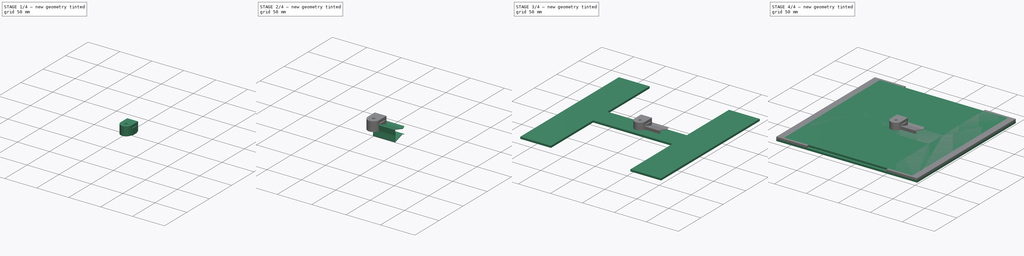
[diagram: build sequence overview — one tinted view per stage of 4, left to right]
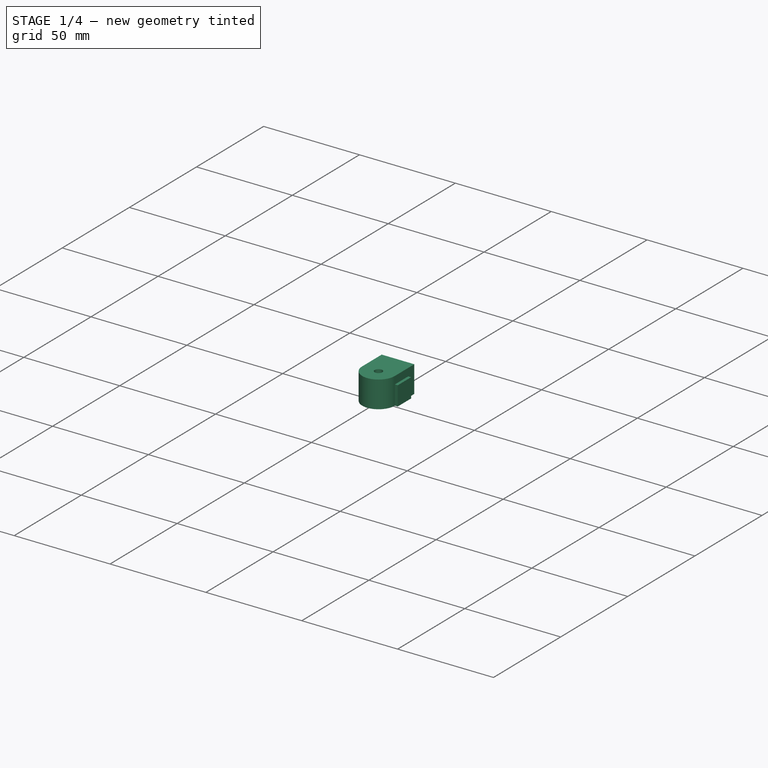
[diagram: stage 1 of 4 — iso view after this stage's code; geometry added in this stage tinted green]
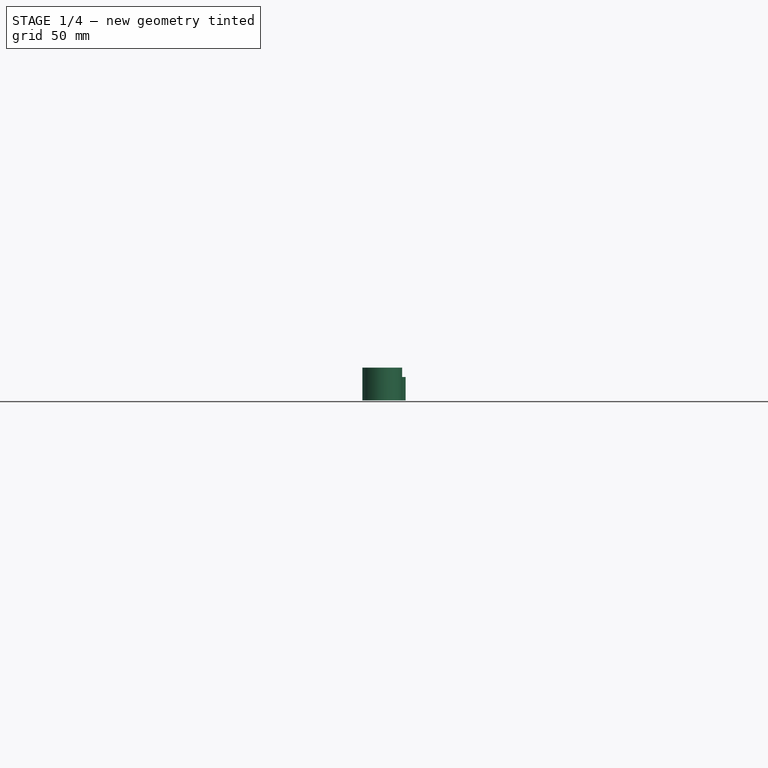
[diagram: stage 1 of 4 — front view after this stage's code; geometry added in this stage tinted green]
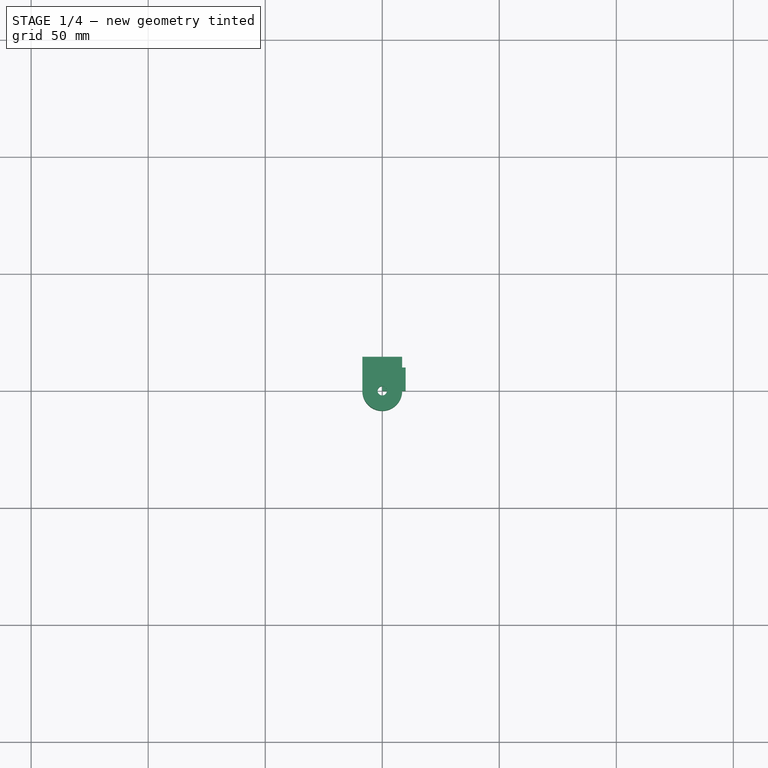
[diagram: stage 1 of 4 — top view after this stage's code; geometry added in this stage tinted green]
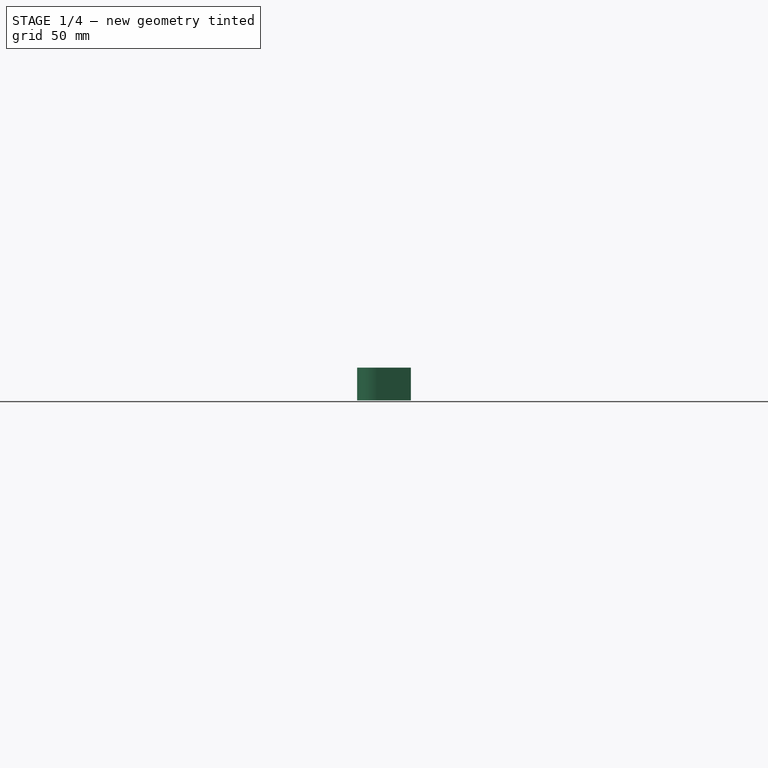
[diagram: stage 1 of 4 — right view after this stage's code; geometry added in this stage tinted green]
FCSTD DOCUMENT  (FreeCAD 0.18R16093 (Git))
Label: Anet_A6_platform_with_glas
License: All rights reserved
LicenseURL: http://en.wikipedia.org/wiki/All_rights_reserved
objects: Sketcher::SketchObject×10, PartDesign::Pad×10, PartDesign::Body×10, Spreadsheet::Sheet×1, App::Part×1, Part::Box×1
note: 41 computed .brp shape members not serialized (recipe doc carries the construction recipe); baked Part::Feature solids carry a one-line shape summary decoded from their .brp

FEATURE [PartDesign::Body] Body002005005  label="Silicon001"
  Group = -> [Sketch007,Pad007]
  Origin = -> Origin008
  Placement = pos=(105,105,-17) rot=(0,0,1;2.35619rad)
  Tip = -> Pad007
FEATURE [Sketcher::SketchObject] Sketch008
  MapMode = 5
  Support = -> [XY_Plane009]
  expr: Constraints[10] = Spreadsheet002.silicon_length - Spreadsheet.silicon_width / 2
  expr: Constraints[2] = Spreadsheet002.silicon_width / 2
  sketch-geometry (5):
    g0: ArcOfCircle CenterX=0 CenterY=2.1e-15 CenterZ=0 NormalX=0 NormalY=0 NormalZ=1 AngleXU=0 Radius=8.5 StartAngle=3.14159 EndAngle=6.28319
    g1: LineSegment StartX=-8.5 StartY=2.1e-15 StartZ=0 EndX=-8.5 EndY=14.5 EndZ=0
    g2: LineSegment StartX=-8.5 StartY=14.5 StartZ=0 EndX=8.5 EndY=14.5 EndZ=0
    g3: LineSegment StartX=8.5 StartY=14.5 StartZ=0 EndX=8.5 EndY=-1.8e-15 EndZ=0
    g4: Circle CenterX=0 CenterY=2.1e-15 CenterZ=0 NormalX=0 NormalY=0 NormalZ=1 AngleXU=0 Radius=2
  constraints (14):
    c: Coincident(g0,g-1)
    c: PointOnObject(g0,g-1)
    c: Radius(g0) = 8.5
    c: Coincident(g1,g0)
    c: Vertical(g1)
    c: Coincident(g2,g1)
    c: Horizontal(g2)
    c: Coincident(g3,g2)
    c: Coincident(g3,g0)
    c: Vertical(g3)
    c: DistanceY(g0,g1) = 14.5
    c: Coincident(g4,g0)
    c: Radius(g4) = 2
    c: Horizontal(g0,g0)
FEATURE [PartDesign::Pad] Pad008
  Length = 14
  Length2 = 100
  Profile = -> Sketch008
  Type = 0
  expr: Length = Spreadsheet002.silicon_height
FEATURE [PartDesign::Body] Body002005006  label="Silicon002"
  Group = -> [Sketch008,Pad008]
  Origin = -> Origin009
  Placement = pos=(-105,105,-17) rot=(0,0,1;3.92699rad)
  Tip = -> Pad008
FEATURE [Sketcher::SketchObject] Sketch009
  MapMode = 5
  Support = -> [XY_Plane010]
  expr: Constraints[10] = Spreadsheet003.silicon_length - Spreadsheet.silicon_width / 2
  expr: Constraints[2] = Spreadsheet003.silicon_width / 2
  sketch-geometry (5):
    g0: ArcOfCircle CenterX=0 CenterY=2.1e-15 CenterZ=0 NormalX=0 NormalY=0 NormalZ=1 AngleXU=0 Radius=8.5 StartAngle=3.14159 EndAngle=6.28319
    g1: LineSegment StartX=-8.5 StartY=2.1e-15 StartZ=0 EndX=-8.5 EndY=14.5 EndZ=0
    g2: LineSegment StartX=-8.5 StartY=14.5 StartZ=0 EndX=8.5 EndY=14.5 EndZ=0
    g3: LineSegment StartX=8.5 StartY=14.5 StartZ=0 EndX=8.5 EndY=-1.8e-15 EndZ=0
    g4: Circle CenterX=0 CenterY=2.1e-15 CenterZ=0 NormalX=0 NormalY=0 NormalZ=1 AngleXU=0 Radius=2
  constraints (14):
    c: Coincident(g0,g-1)
    c: PointOnObject(g0,g-1)
    c: Radius(g0) = 8.5
    c: Coincident(g1,g0)
    c: Vertical(g1)
    c: Coincident(g2,g1)
    c: Horizontal(g2)
    c: Coincident(g3,g2)
    c: Coincident(g3,g0)
    c: Vertical(g3)
    c: DistanceY(g0,g1) = 14.5
    c: Coincident(g4,g0)
    c: Radius(g4) = 2
    c: Horizontal(g0,g0)
FEATURE [PartDesign::Pad] Pad009
  Length = 14
  Length2 = 100
  Profile = -> Sketch009
  Type = 0
  expr: Length = Spreadsheet003.silicon_height
FEATURE [PartDesign::Body] Body002005007  label="Silicon003"
  Group = -> [Sketch009,Pad009]
  Origin = -> Origin010
  Placement = pos=(-105,-105,-17) rot=(0,0,-1;0.610865rad)
  Tip = -> Pad009
FEATURE [App::Part] Part  label="Anet_A6_platform_with_glas"
  Group = -> [Body,Body001,Spreadsheet,Body002,Body002004,Body002005,Body002005003,Body002005004,Body002005005,Body002005006,Body002005007]
  Origin = -> Origin
  Placement = pos=(7,0,-3) rot=(0,0,1;0rad)
FEATURE [Part::Box] Box  label="Cube"
  AttacherType = Attacher::AttachEngine3D
  Height = 10
  Length = 10
  Width = 10
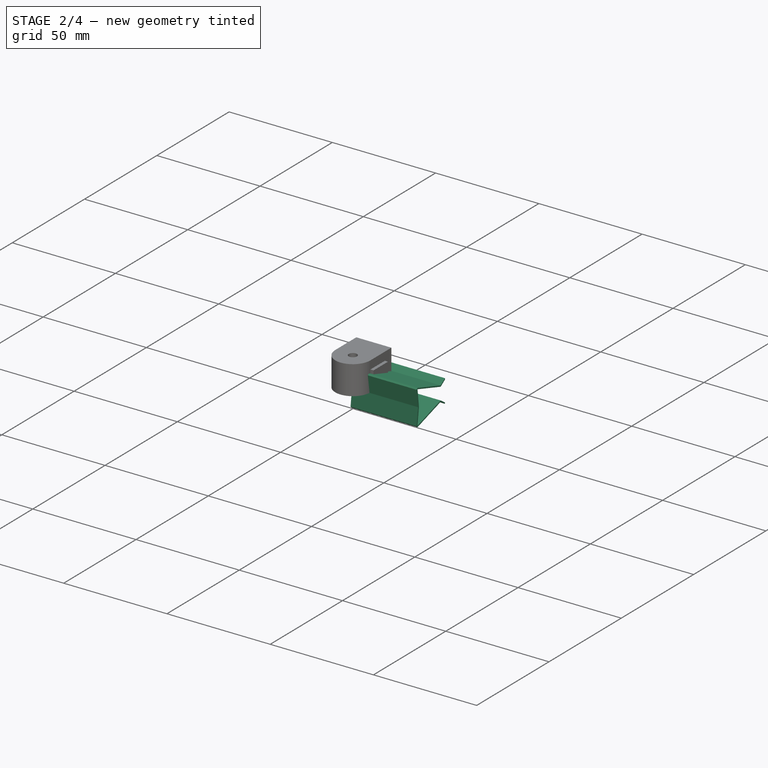
[diagram: stage 2 of 4 — iso view after this stage's code; geometry added in this stage tinted green]
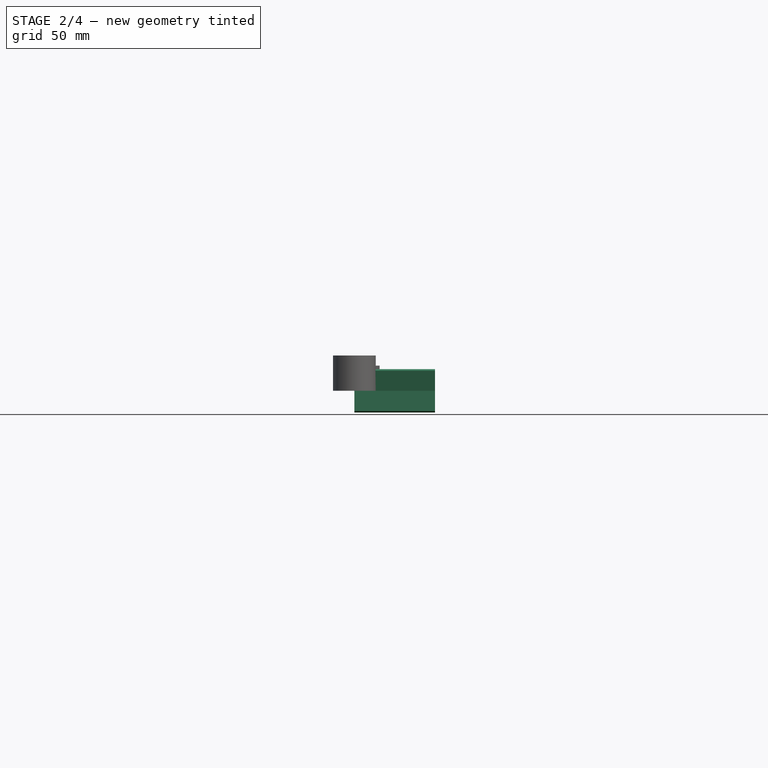
[diagram: stage 2 of 4 — front view after this stage's code; geometry added in this stage tinted green]
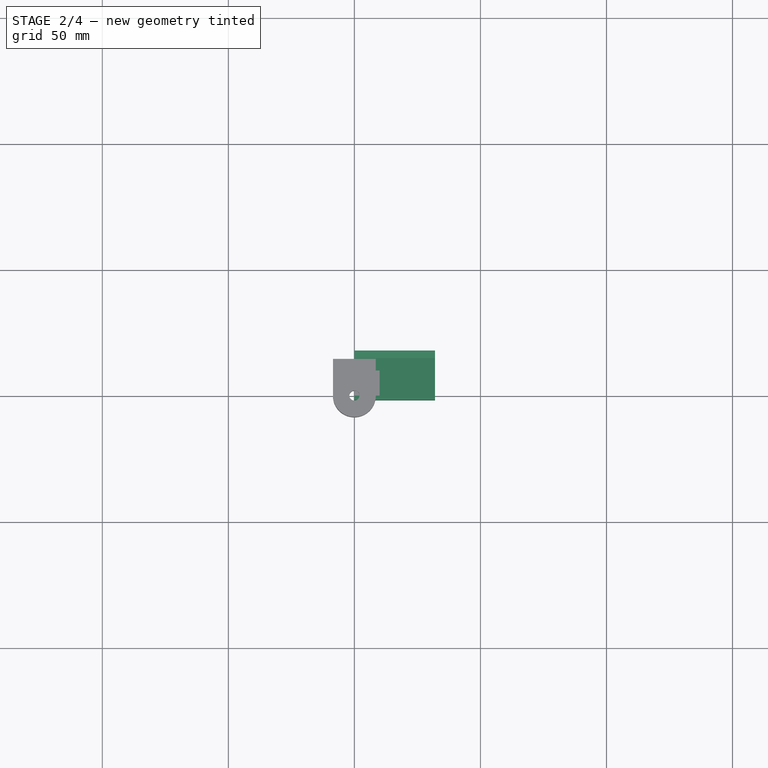
[diagram: stage 2 of 4 — top view after this stage's code; geometry added in this stage tinted green]
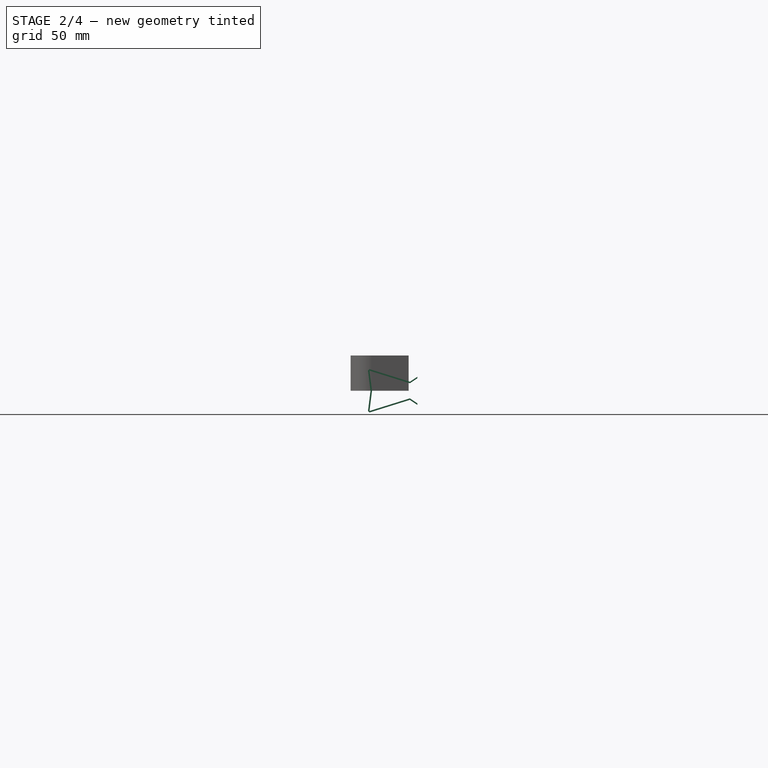
[diagram: stage 2 of 4 — right view after this stage's code; geometry added in this stage tinted green]
FEATURE [PartDesign::Body] Body002005  label="Clamp"
  Group = -> [Sketch004,Pad004]
  Origin = -> Origin005
  Placement = pos=(55,-114,0) rot=(0,0,1;0rad)
  Tip = -> Pad004
FEATURE [Sketcher::SketchObject] Sketch005
  MapMode = 5
  Placement = pos=(0,0,0) rot=(0.57735,0.57735,0.57735;2.0944rad)
  Support = -> [YZ_Plane006]
  sketch-geometry (16):
    g0: LineSegment StartX=-1 StartY=8 StartZ=0 EndX=0 EndY=0 EndZ=0
    g1: LineSegment StartX=0 StartY=0 StartZ=0 EndX=-1 EndY=-8 EndZ=0
    g2: LineSegment StartX=-1 StartY=-8 StartZ=0 EndX=15 EndY=-3 EndZ=0
    g3: LineSegment StartX=15 StartY=-3 StartZ=0 EndX=18 EndY=-5 EndZ=0
    g4: LineSegment StartX=-1 StartY=8 StartZ=0 EndX=15 EndY=3 EndZ=0
    g5: LineSegment StartX=15 StartY=3 StartZ=0 EndX=18 EndY=5 EndZ=0
    g6: LineSegment StartX=18 StartY=5 StartZ=0 EndX=18 EndY=5.6 EndZ=0
    g7: LineSegment StartX=18 StartY=5.6 StartZ=0 EndX=15 EndY=3.6 EndZ=0
    g8: LineSegment StartX=15 StartY=3.6 StartZ=0 EndX=-1 EndY=8.6 EndZ=0
    g9: LineSegment StartX=-1 StartY=8.6 StartZ=0 EndX=-1.6 EndY=8 EndZ=0
    g10: LineSegment StartX=-1.6 StartY=8 StartZ=0 EndX=-0.6 EndY=0 EndZ=0
    g11: LineSegment StartX=-0.6 StartY=0 StartZ=0 EndX=-1.6 EndY=-8 EndZ=0
    g12: LineSegment StartX=-1.6 StartY=-8 StartZ=0 EndX=-1 EndY=-8.6 EndZ=0
    g13: LineSegment StartX=-1 StartY=-8.6 StartZ=0 EndX=15 EndY=-3.6 EndZ=0
    g14: LineSegment StartX=15 StartY=-3.6 StartZ=0 EndX=18 EndY=-5.6 EndZ=0
    g15: LineSegment StartX=18 StartY=-5.6 StartZ=0 EndX=18 EndY=-5 EndZ=0
  constraints (47):
    c: Coincident(g0,g1)
    c: Coincident(g1,g2)
    c: Coincident(g2,g3)
    c: Coincident(g0,g4)
    c: Coincident(g4,g5)
    c: Coincident(g0,g-1)
    c: Vertical(g0,g1)
    c: DistanceY(g0,g0) = 8
    c: DistanceY(g1,g0) = 8
    c: DistanceX(g0,g0) = 1
    c: Vertical(g4,g2)
    c: Vertical(g5,g3)
    c: DistanceX(g0,g5) = 18
    c: DistanceX(g4,g5) = 3
    c: DistanceY(g0,g4) = 3
    c: DistanceY(g2,g0) = 3
    c: DistanceY(g4,g5) = 2
    c: DistanceY(g3,g2) = 2
    c: Coincident(g5,g6)
    c: Coincident(g6,g7)
    c: Coincident(g7,g8)
    c: Coincident(g8,g9)
    c: Coincident(g9,g10)
    c: PointOnObject(g10,g-1)
    c: Coincident(g10,g11)
    c: Coincident(g11,g12)
    c: Coincident(g12,g13)
    c: Coincident(g13,g14)
    c: Coincident(g14,g15)
    c: Coincident(g15,g3)
    c: Vertical(g13,g2)
    c: Vertical(g4,g7)
    c: Vertical(g14,g3)
    c: Vertical(g5,g6)
    c: Vertical(g12,g1)
    c: Vertical(g1,g8)
    c: Horizontal(g9,g0)
    c: Horizontal(g11,g1)
    c: Equal(g11,g1)
    c: Equal(g2,g13)
    c: Equal(g14,g3)
    c: Equal(g10,g0)
    c: Equal(g4,g8)
    c: Equal(g7,g5)
    c: DistanceX(g10,g0) = 0.6
    c: DistanceY(g4,g7) = 0.6
    c: DistanceY(g13,g2) = 0.6
FEATURE [PartDesign::Pad] Pad005
  Length = 32
  Length2 = 100
  Placement = pos=(0,0,0) rot=(0.57735,0.57735,0.57735;2.0944rad)
  Profile = -> Sketch005
  Type = 0
FEATURE [PartDesign::Body] Body002005003  label="Clamp003"
  Group = -> [Sketch005,Pad005]
  Origin = -> Origin006
  Placement = pos=(87,114,0) rot=(0,0,1;3.14159rad)
  Tip = -> Pad005
FEATURE [Sketcher::SketchObject] Sketch006
  MapMode = 5
  Placement = pos=(0,0,0) rot=(0.57735,0.57735,0.57735;2.0944rad)
  Support = -> [YZ_Plane007]
  sketch-geometry (16):
    g0: LineSegment StartX=-1 StartY=8 StartZ=0 EndX=0 EndY=0 EndZ=0
    g1: LineSegment StartX=0 StartY=0 StartZ=0 EndX=-1 EndY=-8 EndZ=0
    g2: LineSegment StartX=-1 StartY=-8 StartZ=0 EndX=15 EndY=-3 EndZ=0
    g3: LineSegment StartX=15 StartY=-3 StartZ=0 EndX=18 EndY=-5 EndZ=0
    g4: LineSegment StartX=-1 StartY=8 StartZ=0 EndX=15 EndY=3 EndZ=0
    g5: LineSegment StartX=15 StartY=3 StartZ=0 EndX=18 EndY=5 EndZ=0
    g6: LineSegment StartX=18 StartY=5 StartZ=0 EndX=18 EndY=5.6 EndZ=0
    g7: LineSegment StartX=18 StartY=5.6 StartZ=0 EndX=15 EndY=3.6 EndZ=0
    g8: LineSegment StartX=15 StartY=3.6 StartZ=0 EndX=-1 EndY=8.6 EndZ=0
    g9: LineSegment StartX=-1 StartY=8.6 StartZ=0 EndX=-1.6 EndY=8 EndZ=0
    g10: LineSegment StartX=-1.6 StartY=8 StartZ=0 EndX=-0.6 EndY=0 EndZ=0
    g11: LineSegment StartX=-0.6 StartY=0 StartZ=0 EndX=-1.6 EndY=-8 EndZ=0
    g12: LineSegment StartX=-1.6 StartY=-8 StartZ=0 EndX=-1 EndY=-8.6 EndZ=0
    g13: LineSegment StartX=-1 StartY=-8.6 StartZ=0 EndX=15 EndY=-3.6 EndZ=0
    g14: LineSegment StartX=15 StartY=-3.6 StartZ=0 EndX=18 EndY=-5.6 EndZ=0
    g15: LineSegment StartX=18 StartY=-5.6 StartZ=0 EndX=18 EndY=-5 EndZ=0
  constraints (47):
    c: Coincident(g0,g1)
    c: Coincident(g1,g2)
    c: Coincident(g2,g3)
    c: Coincident(g0,g4)
    c: Coincident(g4,g5)
    c: Coincident(g0,g-1)
    c: Vertical(g0,g1)
    c: DistanceY(g0,g0) = 8
    c: DistanceY(g1,g0) = 8
    c: DistanceX(g0,g0) = 1
    c: Vertical(g4,g2)
    c: Vertical(g5,g3)
    c: DistanceX(g0,g5) = 18
    c: DistanceX(g4,g5) = 3
    c: DistanceY(g0,g4) = 3
    c: DistanceY(g2,g0) = 3
    c: DistanceY(g4,g5) = 2
    c: DistanceY(g3,g2) = 2
    c: Coincident(g5,g6)
    c: Coincident(g6,g7)
    c: Coincident(g7,g8)
    c: Coincident(g8,g9)
    c: Coincident(g9,g10)
    c: PointOnObject(g10,g-1)
    c: Coincident(g10,g11)
    c: Coincident(g11,g12)
    c: Coincident(g12,g13)
    c: Coincident(g13,g14)
    c: Coincident(g14,g15)
    c: Coincident(g15,g3)
    c: Vertical(g13,g2)
    c: Vertical(g4,g7)
    c: Vertical(g14,g3)
    c: Vertical(g5,g6)
    c: Vertical(g12,g1)
    c: Vertical(g1,g8)
    c: Horizontal(g9,g0)
    c: Horizontal(g11,g1)
    c: Equal(g11,g1)
    c: Equal(g2,g13)
    c: Equal(g14,g3)
    c: Equal(g10,g0)
    c: Equal(g4,g8)
    c: Equal(g7,g5)
    c: DistanceX(g10,g0) = 0.6
    c: DistanceY(g4,g7) = 0.6
    c: DistanceY(g13,g2) = 0.6
FEATURE [PartDesign::Pad] Pad006
  Length = 32
  Length2 = 100
  Placement = pos=(0,0,0) rot=(0.57735,0.57735,0.57735;2.0944rad)
  Profile = -> Sketch006
  Type = 0
FEATURE [PartDesign::Body] Body002005004  label="Clamp004"
  Group = -> [Sketch006,Pad006]
  Origin = -> Origin007
  Placement = pos=(-55,114,0) rot=(0,0,1;3.14159rad)
  Tip = -> Pad006
FEATURE [Sketcher::SketchObject] Sketch007
  MapMode = 5
  Support = -> [XY_Plane008]
  expr: Constraints[10] = Spreadsheet.silicon_length - Spreadsheet.silicon_width / 2
  expr: Constraints[2] = Spreadsheet.silicon_width / 2
  sketch-geometry (5):
    g0: ArcOfCircle CenterX=0 CenterY=4.2e-15 CenterZ=0 NormalX=0 NormalY=0 NormalZ=1 AngleXU=0 Radius=8.5 StartAngle=3.14159 EndAngle=6.28319
    g1: LineSegment StartX=-8.5 StartY=4.2e-15 StartZ=0 EndX=-8.5 EndY=14.5 EndZ=0
    g2: LineSegment StartX=-8.5 StartY=14.5 StartZ=0 EndX=8.5 EndY=14.5 EndZ=0
    g3: LineSegment StartX=8.5 StartY=14.5 StartZ=0 EndX=8.5 EndY=1.8e-15 EndZ=0
    g4: Circle CenterX=0 CenterY=4.2e-15 CenterZ=0 NormalX=0 NormalY=0 NormalZ=1 AngleXU=0 Radius=2
  constraints (14):
    c: Coincident(g0,g-1)
    c: PointOnObject(g0,g-1)
    c: Radius(g0) = 8.5
    c: Coincident(g1,g0)
    c: Vertical(g1)
    c: Coincident(g2,g1)
    c: Horizontal(g2)
    c: Coincident(g3,g2)
    c: Coincident(g3,g0)
    c: Vertical(g3)
    c: DistanceY(g0,g1) = 14.5
    c: Coincident(g4,g0)
    c: Radius(g4) = 2
    c: Horizontal(g0,g0)
FEATURE [PartDesign::Pad] Pad007
  Length = 14
  Length2 = 100
  Profile = -> Sketch007
  Type = 0
  expr: Length = Spreadsheet.silicon_height
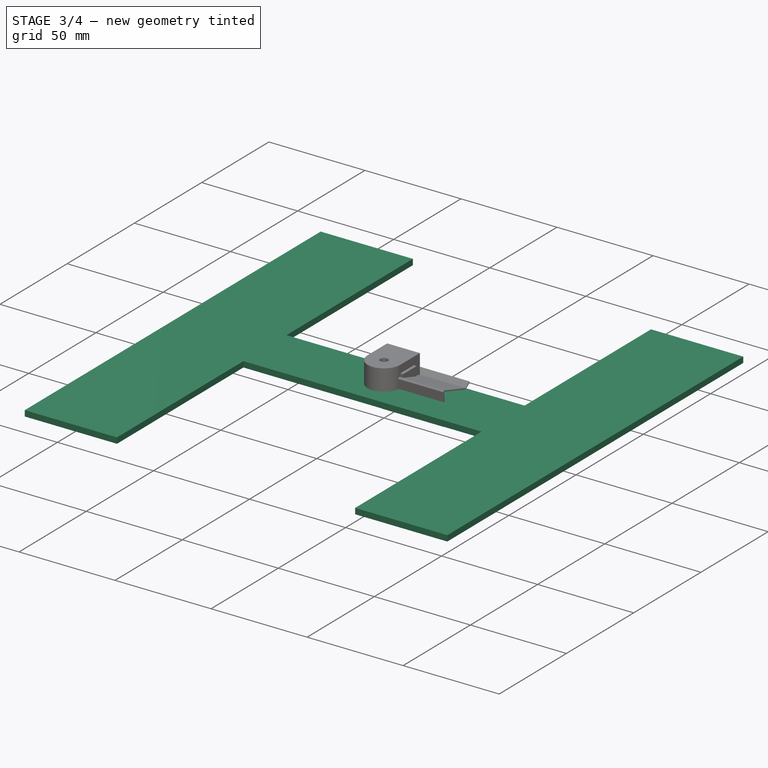
[diagram: stage 3 of 4 — iso view after this stage's code; geometry added in this stage tinted green]
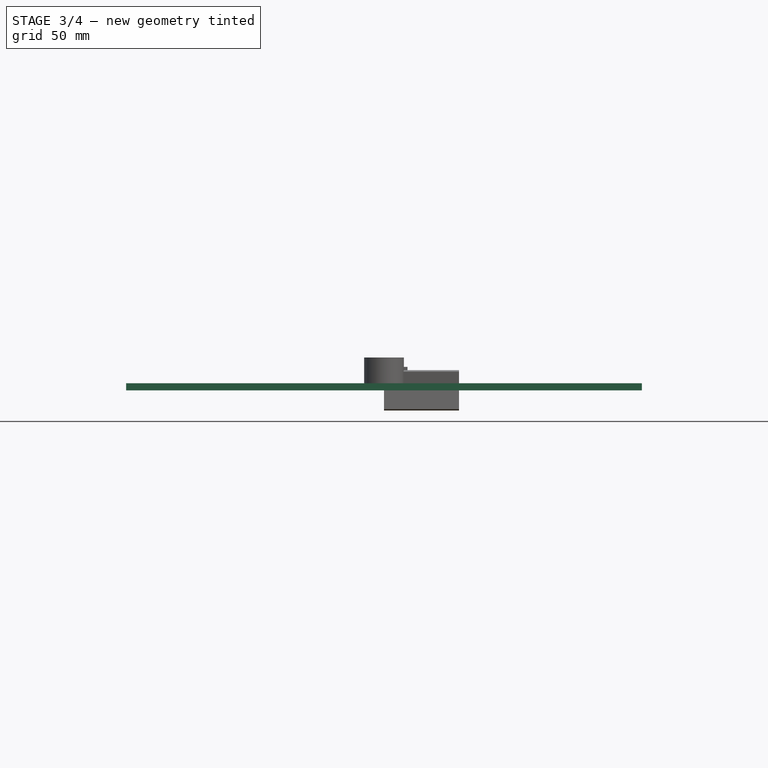
[diagram: stage 3 of 4 — front view after this stage's code; geometry added in this stage tinted green]
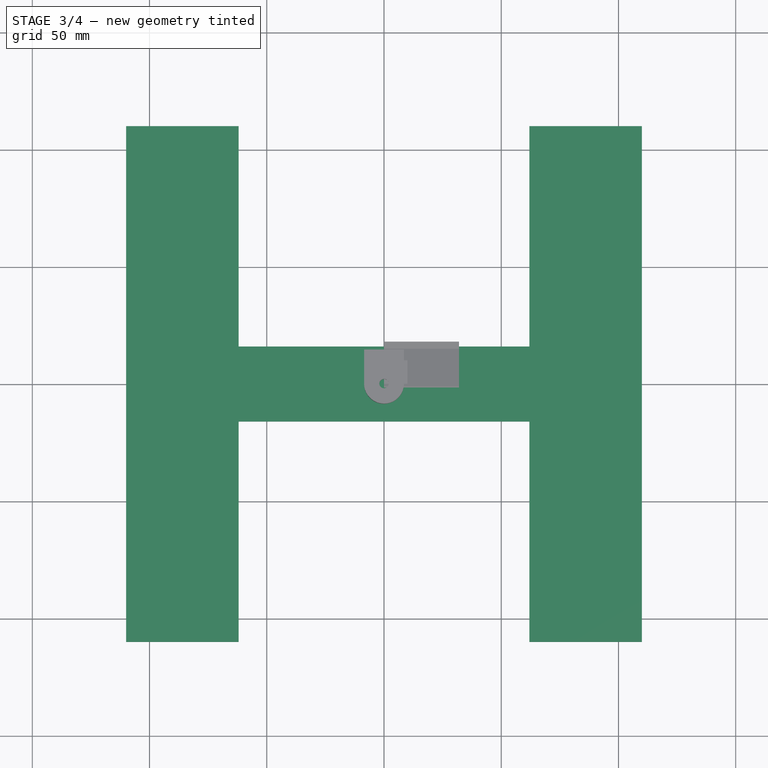
[diagram: stage 3 of 4 — top view after this stage's code; geometry added in this stage tinted green]
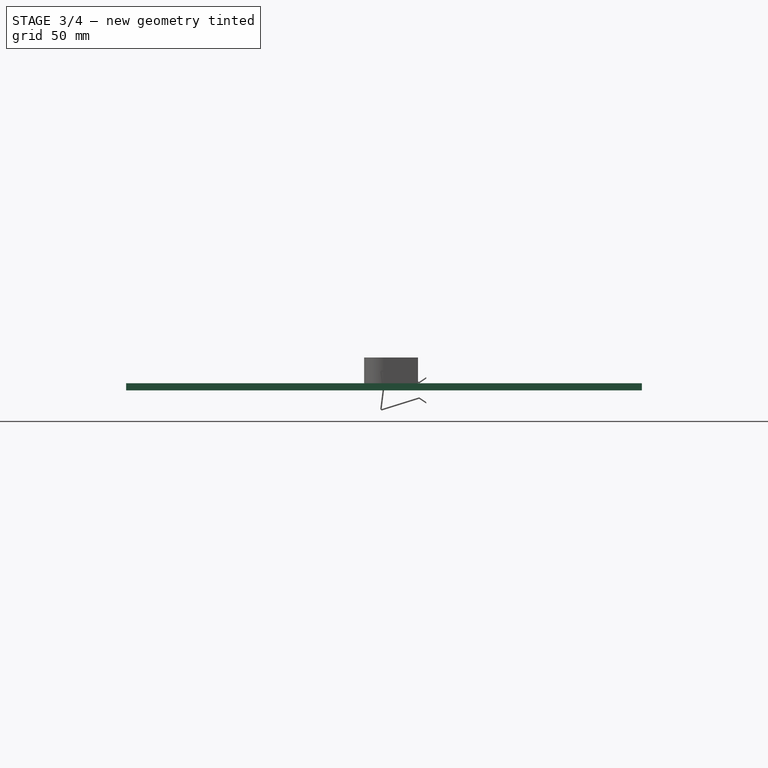
[diagram: stage 3 of 4 — right view after this stage's code; geometry added in this stage tinted green]
FEATURE [PartDesign::Body] Body002  label="Silicon"
  Group = -> [Sketch002,Pad002]
  Origin = -> Origin003
  Placement = pos=(105,-105,-17) rot=(0,0,1;0.785398rad)
  Tip = -> Pad002
FEATURE [Sketcher::SketchObject] Sketch003
  MapMode = 5
  Support = -> [XY_Plane004]
  expr: Constraints[28] = Spreadsheet.alu_plat_width
  expr: Constraints[29] = Spreadsheet.alu_plat_width / 2
  expr: Constraints[26] = Spreadsheet.alu_plat_height
  expr: Constraints[27] = Spreadsheet.alu_plat_height / 2
  sketch-geometry (12):
    g0: LineSegment StartX=-110 StartY=110 StartZ=0 EndX=-62 EndY=110 EndZ=0
    g1: LineSegment StartX=-62 StartY=110 StartZ=0 EndX=-62 EndY=16 EndZ=0
    g2: LineSegment StartX=-62 StartY=16 StartZ=0 EndX=62 EndY=16 EndZ=0
    g3: LineSegment StartX=62 StartY=16 StartZ=0 EndX=62 EndY=110 EndZ=0
    g4: LineSegment StartX=62 StartY=110 StartZ=0 EndX=110 EndY=110 EndZ=0
    g5: LineSegment StartX=110 StartY=110 StartZ=0 EndX=110 EndY=-110 EndZ=0
    g6: LineSegment StartX=110 StartY=-110 StartZ=0 EndX=62 EndY=-110 EndZ=0
    g7: LineSegment StartX=62 StartY=-110 StartZ=0 EndX=62 EndY=-16 EndZ=0
    g8: LineSegment StartX=62 StartY=-16 StartZ=0 EndX=-62 EndY=-16 EndZ=0
    g9: LineSegment StartX=-62 StartY=-16 StartZ=0 EndX=-62 EndY=-110 EndZ=0
    g10: LineSegment StartX=-62 StartY=-110 StartZ=0 EndX=-110 EndY=-110 EndZ=0
    g11: LineSegment StartX=-110 StartY=-110 StartZ=0 EndX=-110 EndY=110 EndZ=0
  constraints (36):
    c: Horizontal(g0)
    c: Coincident(g0,g1)
    c: Vertical(g1)
    c: Coincident(g1,g2)
    c: Horizontal(g2)
    c: Coincident(g2,g3)
    c: Vertical(g3)
    c: Coincident(g3,g4)
    c: Horizontal(g4)
    c: Coincident(g4,g5)
    c: Vertical(g5)
    c: Coincident(g5,g6)
    c: Horizontal(g6)
    c: Coincident(g6,g7)
    c: Vertical(g7)
    c: Coincident(g7,g8)
    c: Horizontal(g8)
    c: Coincident(g8,g9)
    c: Coincident(g9,g10)
    c: Coincident(g10,g11)
    c: Coincident(g11,g0)
    c: Vertical(g11)
    c: Vertical(g1,g8)
    c: Horizontal(g10,g9)
    c: Horizontal(g9,g6)
    c: Horizontal(g0,g4)
    c: DistanceY(g5,g4) = 220
    c: DistanceY(g5,g-1) = 110
    c: DistanceX(g10,g5) = 220
    c: DistanceX(g-1,g5) = 110
    c: Equal(g0,g4)
    c: Equal(g4,g6)
    c: Equal(g6,g10)
    c: DistanceX(g0,g0) = 48
    c: DistanceY(g1,g0) = 94
    c: DistanceY(g9,g8) = 94
FEATURE [PartDesign::Pad] Pad003
  Length = 3
  Length2 = 100
  Profile = -> Sketch003
  Type = 0
FEATURE [PartDesign::Body] Body002004  label="H_Plat"
  Group = -> [Sketch003,Pad003]
  Origin = -> Origin004
  Placement = pos=(0,0,-20) rot=(0,0,1;0rad)
  Tip = -> Pad003
FEATURE [Sketcher::SketchObject] Sketch004
  MapMode = 5
  Placement = pos=(0,0,0) rot=(0.57735,0.57735,0.57735;2.0944rad)
  Support = -> [YZ_Plane005]
  sketch-geometry (16):
    g0: LineSegment StartX=-1 StartY=8 StartZ=0 EndX=0 EndY=0 EndZ=0
    g1: LineSegment StartX=0 StartY=0 StartZ=0 EndX=-1 EndY=-8 EndZ=0
    g2: LineSegment StartX=-1 StartY=-8 StartZ=0 EndX=15 EndY=-3 EndZ=0
    g3: LineSegment StartX=15 StartY=-3 StartZ=0 EndX=18 EndY=-5 EndZ=0
    g4: LineSegment StartX=-1 StartY=8 StartZ=0 EndX=15 EndY=3 EndZ=0
    g5: LineSegment StartX=15 StartY=3 StartZ=0 EndX=18 EndY=5 EndZ=0
    g6: LineSegment StartX=18 StartY=5 StartZ=0 EndX=18 EndY=5.6 EndZ=0
    g7: LineSegment StartX=18 StartY=5.6 StartZ=0 EndX=15 EndY=3.6 EndZ=0
    g8: LineSegment StartX=15 StartY=3.6 StartZ=0 EndX=-1 EndY=8.6 EndZ=0
    g9: LineSegment StartX=-1 StartY=8.6 StartZ=0 EndX=-1.6 EndY=8 EndZ=0
    g10: LineSegment StartX=-1.6 StartY=8 StartZ=0 EndX=-0.6 EndY=0 EndZ=0
    g11: LineSegment StartX=-0.6 StartY=0 StartZ=0 EndX=-1.6 EndY=-8 EndZ=0
    g12: LineSegment StartX=-1.6 StartY=-8 StartZ=0 EndX=-1 EndY=-8.6 EndZ=0
    g13: LineSegment StartX=-1 StartY=-8.6 StartZ=0 EndX=15 EndY=-3.6 EndZ=0
    g14: LineSegment StartX=15 StartY=-3.6 StartZ=0 EndX=18 EndY=-5.6 EndZ=0
    g15: LineSegment StartX=18 StartY=-5.6 StartZ=0 EndX=18 EndY=-5 EndZ=0
  constraints (47):
    c: Coincident(g0,g1)
    c: Coincident(g1,g2)
    c: Coincident(g2,g3)
    c: Coincident(g0,g4)
    c: Coincident(g4,g5)
    c: Coincident(g0,g-1)
    c: Vertical(g0,g1)
    c: DistanceY(g0,g0) = 8
    c: DistanceY(g1,g0) = 8
    c: DistanceX(g0,g0) = 1
    c: Vertical(g4,g2)
    c: Vertical(g5,g3)
    c: DistanceX(g0,g5) = 18
    c: DistanceX(g4,g5) = 3
    c: DistanceY(g0,g4) = 3
    c: DistanceY(g2,g0) = 3
    c: DistanceY(g4,g5) = 2
    c: DistanceY(g3,g2) = 2
    c: Coincident(g5,g6)
    c: Coincident(g6,g7)
    c: Coincident(g7,g8)
    c: Coincident(g8,g9)
    c: Coincident(g9,g10)
    c: PointOnObject(g10,g-1)
    c: Coincident(g10,g11)
    c: Coincident(g11,g12)
    c: Coincident(g12,g13)
    c: Coincident(g13,g14)
    c: Coincident(g14,g15)
    c: Coincident(g15,g3)
    c: Vertical(g13,g2)
    c: Vertical(g4,g7)
    c: Vertical(g14,g3)
    c: Vertical(g5,g6)
    c: Vertical(g12,g1)
    c: Vertical(g1,g8)
    c: Horizontal(g9,g0)
    c: Horizontal(g11,g1)
    c: Equal(g11,g1)
    c: Equal(g2,g13)
    c: Equal(g14,g3)
    c: Equal(g10,g0)
    c: Equal(g4,g8)
    c: Equal(g7,g5)
    c: DistanceX(g10,g0) = 0.6
    c: DistanceY(g4,g7) = 0.6
    c: DistanceY(g13,g2) = 0.6
FEATURE [PartDesign::Pad] Pad004
  Length = 32
  Length2 = 100
  Placement = pos=(0,0,0) rot=(0.57735,0.57735,0.57735;2.0944rad)
  Profile = -> Sketch004
  Type = 0
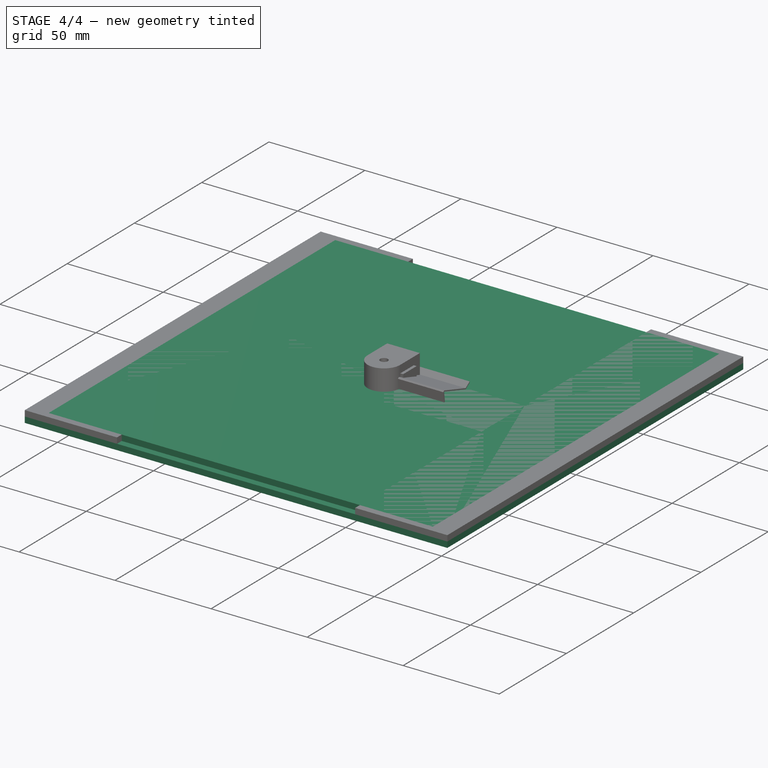
[diagram: stage 4 of 4 — iso view after this stage's code; geometry added in this stage tinted green]
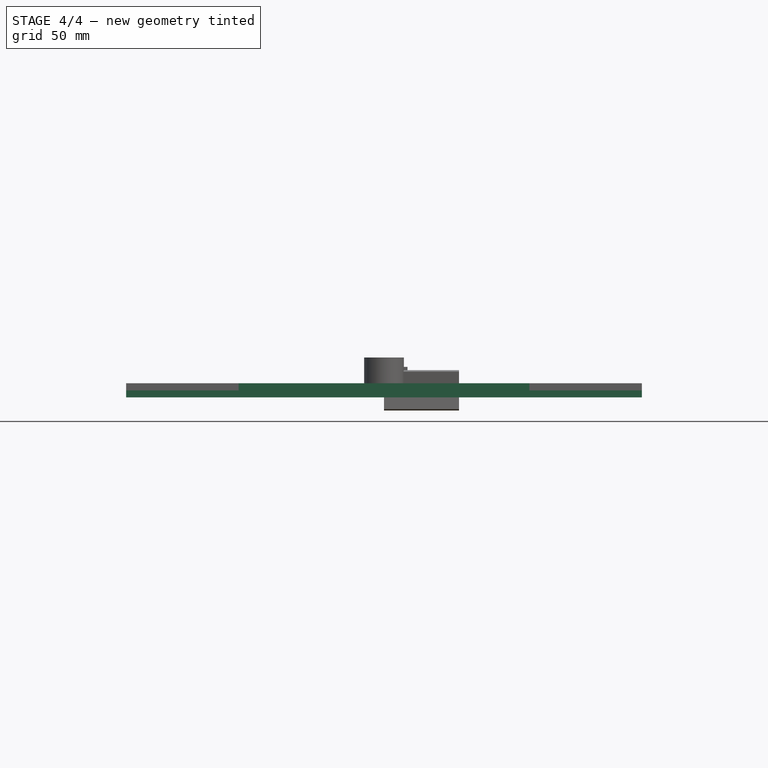
[diagram: stage 4 of 4 — front view after this stage's code; geometry added in this stage tinted green]
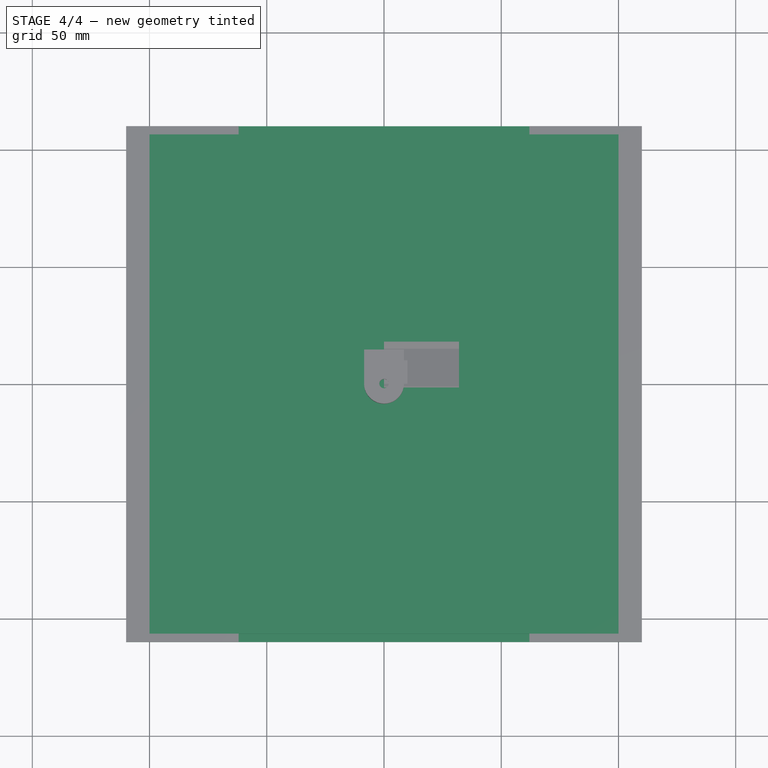
[diagram: stage 4 of 4 — top view after this stage's code; geometry added in this stage tinted green]
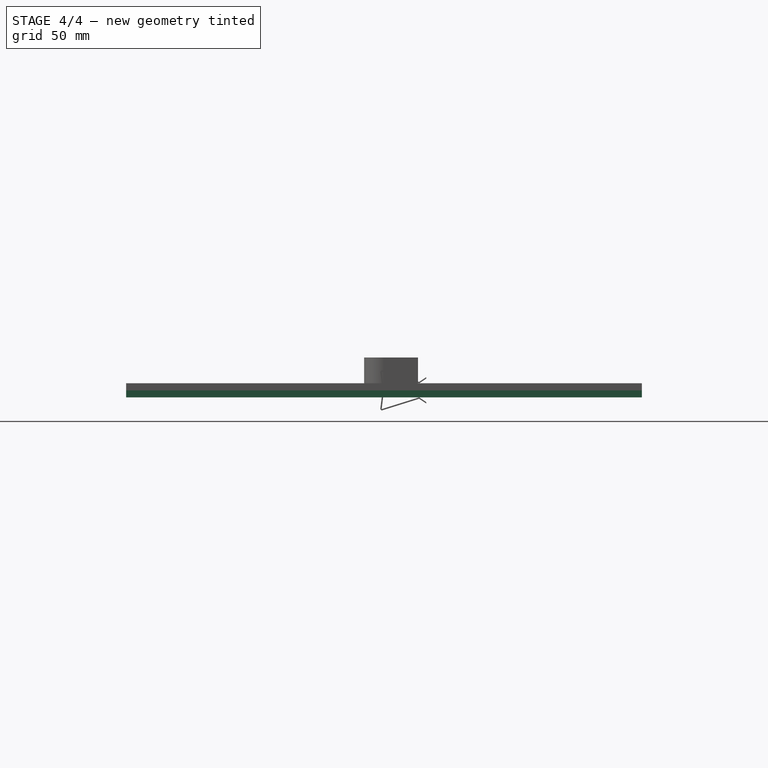
[diagram: stage 4 of 4 — right view after this stage's code; geometry added in this stage tinted green]
FEATURE [Sketcher::SketchObject] Sketch
  MapMode = 5
  Support = -> [XY_Plane001]
  expr: Constraints[11] = Spreadsheet.alu_plat_height / 2
  expr: Constraints[9] = Spreadsheet.alu_plat_height
  expr: Constraints[10] = Spreadsheet.alu_plat_width / 2
  expr: Constraints[8] = Spreadsheet.alu_plat_width
  sketch-geometry (4):
    g0: LineSegment StartX=-110 StartY=110 StartZ=0 EndX=110 EndY=110 EndZ=0
    g1: LineSegment StartX=110 StartY=110 StartZ=0 EndX=110 EndY=-110 EndZ=0
    g2: LineSegment StartX=110 StartY=-110 StartZ=0 EndX=-110 EndY=-110 EndZ=0
    g3: LineSegment StartX=-110 StartY=-110 StartZ=0 EndX=-110 EndY=110 EndZ=0
  constraints (12):
    c: Coincident(g0,g1)
    c: Coincident(g1,g2)
    c: Coincident(g2,g3)
    c: Coincident(g3,g0)
    c: Horizontal(g0)
    c: Horizontal(g2)
    c: Vertical(g1)
    c: Vertical(g3)
    c: DistanceX(g2,g1) = 220
    c: DistanceY(g2,g0) = 220
    c: DistanceX(g-1,g0) = 110
    c: DistanceY(g-1,g0) = 110
FEATURE [PartDesign::Pad] Pad
  Length = 3
  Length2 = 100
  Profile = -> Sketch
  Reversed = true
  Type = 0
  expr: Length = Spreadsheet.alu_plat_thickness
FEATURE [PartDesign::Body] Body  label="Alu_plat"
  Group = -> [Sketch,Pad]
  Origin = -> Origin001
  Tip = -> Pad
FEATURE [Sketcher::SketchObject] Sketch001
  MapMode = 5
  Support = -> [XY_Plane002]
  expr: Constraints[10] = Spreadsheet.glas_plat_width / 2
  expr: Constraints.glas_plat_width = Spreadsheet.glas_plat_width
  expr: Constraints[11] = Spreadsheet.glas_plat_height / 2
  expr: Constraints.glas_plat_height = Spreadsheet.glas_plat_height
  sketch-geometry (4):
    g0: LineSegment StartX=-100 StartY=106.5 StartZ=0 EndX=100 EndY=106.5 EndZ=0
    g1: LineSegment StartX=100 StartY=106.5 StartZ=0 EndX=100 EndY=-106.5 EndZ=0
    g2: LineSegment StartX=100 StartY=-106.5 StartZ=0 EndX=-100 EndY=-106.5 EndZ=0
    g3: LineSegment StartX=-100 StartY=-106.5 StartZ=0 EndX=-100 EndY=106.5 EndZ=0
  constraints (12):
    c: Coincident(g0,g1)
    c: Coincident(g1,g2)
    c: Coincident(g2,g3)
    c: Coincident(g3,g0)
    c: Horizontal(g0)
    c: Horizontal(g2)
    c: Vertical(g1)
    c: Vertical(g3)
    c: DistanceX(g2,g1) = 200  'glas_plat_width'
    c: DistanceY(g2,g0) = 213  'glas_plat_height'
    c: DistanceX(g-1,g0) = 100
    c: DistanceY(g-1,g0) = 106.5
FEATURE [PartDesign::Pad] Pad001
  Length = 3
  Length2 = 100
  Profile = -> Sketch001
  Type = 0
  expr: Length = Spreadsheet.glas_plat_thickness
FEATURE [PartDesign::Body] Body001  label="Glas_plat"
  Group = -> [Sketch001,Pad001]
  Origin = -> Origin002
  Placement = pos=(-7,0,0) rot=(0,0,1;0rad)
  Tip = -> Pad001
  expr: Placement.Base.x = -(Spreadsheet.alu_plat_width - Spreadsheet.glas_plat_width) / 2 - Spreadsheet.glas_plat_offset_x
FEATURE [Spreadsheet::Sheet] Spreadsheet
  cells = A2=Alu Plat; B2=width; C2(alu_plat_width)=220; E2=alu_plat_width; G2=Build size： 220*220*240mm; B3=height; C3(alu_plat_height)=220; B4=thickness; C4(alu_plat_thickness)=3; A5=Glas plat; B5=width; C5(glas_plat_width)=200; B6=height; C6(glas_plat_height)=213; B7=thickness; C7(glas_plat_thickness)=3; B8=offset_x; C8(glas_plat_offset_x)=-3; B9=offset_y; C9(glas_plat_offset_y)=0; A10=Silicon; B10=width; C10(silicon_width)=17; B11=length; C11(silicon_length)=23; B12=thickness; C12(silicon_height)=14
FEATURE [Sketcher::SketchObject] Sketch002
  MapMode = 5
  Support = -> [XY_Plane003]
  expr: Constraints[10] = Spreadsheet.silicon_length - Spreadsheet.silicon_width / 2
  expr: Constraints[2] = Spreadsheet.silicon_width / 2
  sketch-geometry (5):
    g0: ArcOfCircle CenterX=0 CenterY=2.1e-15 CenterZ=0 NormalX=0 NormalY=0 NormalZ=1 AngleXU=0 Radius=8.5 StartAngle=3.14159 EndAngle=6.28319
    g1: LineSegment StartX=-8.5 StartY=2.1e-15 StartZ=0 EndX=-8.5 EndY=14.5 EndZ=0
    g2: LineSegment StartX=-8.5 StartY=14.5 StartZ=0 EndX=8.5 EndY=14.5 EndZ=0
    g3: LineSegment StartX=8.5 StartY=14.5 StartZ=0 EndX=8.5 EndY=-1.8e-15 EndZ=0
    g4: Circle CenterX=0 CenterY=2.1e-15 CenterZ=0 NormalX=0 NormalY=0 NormalZ=1 AngleXU=0 Radius=2
  constraints (14):
    c: Coincident(g0,g-1)
    c: PointOnObject(g0,g-1)
    c: Radius(g0) = 8.5
    c: Coincident(g1,g0)
    c: Vertical(g1)
    c: Coincident(g2,g1)
    c: Horizontal(g2)
    c: Coincident(g3,g2)
    c: Coincident(g3,g0)
    c: Vertical(g3)
    c: DistanceY(g0,g1) = 14.5
    c: Coincident(g4,g0)
    c: Radius(g4) = 2
    c: Horizontal(g0,g0)
FEATURE [PartDesign::Pad] Pad002
  Length = 14
  Length2 = 100
  Profile = -> Sketch002
  Type = 0
  expr: Length = Spreadsheet.silicon_height
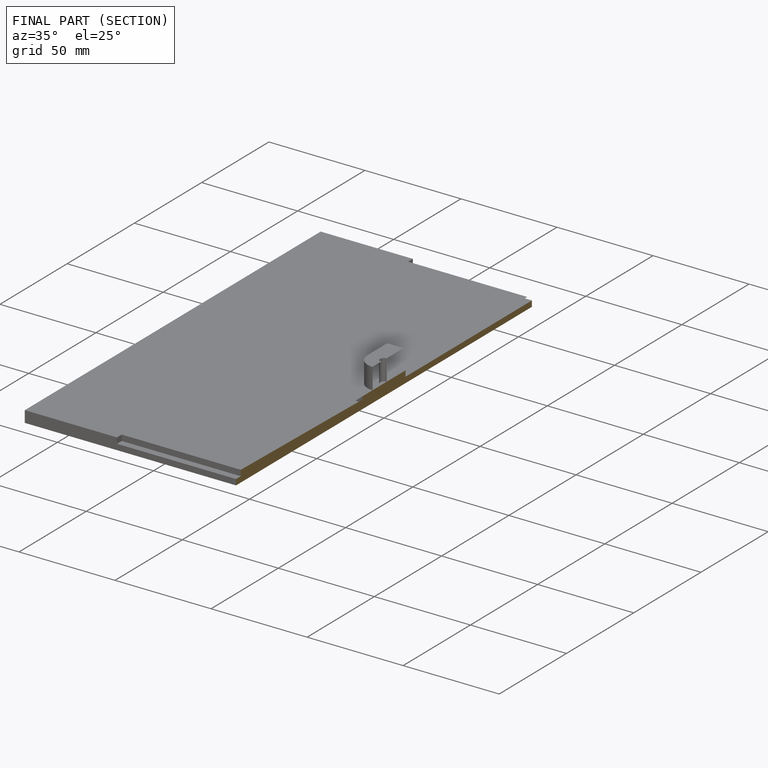
[diagram: finished part — half-section view (interior)]
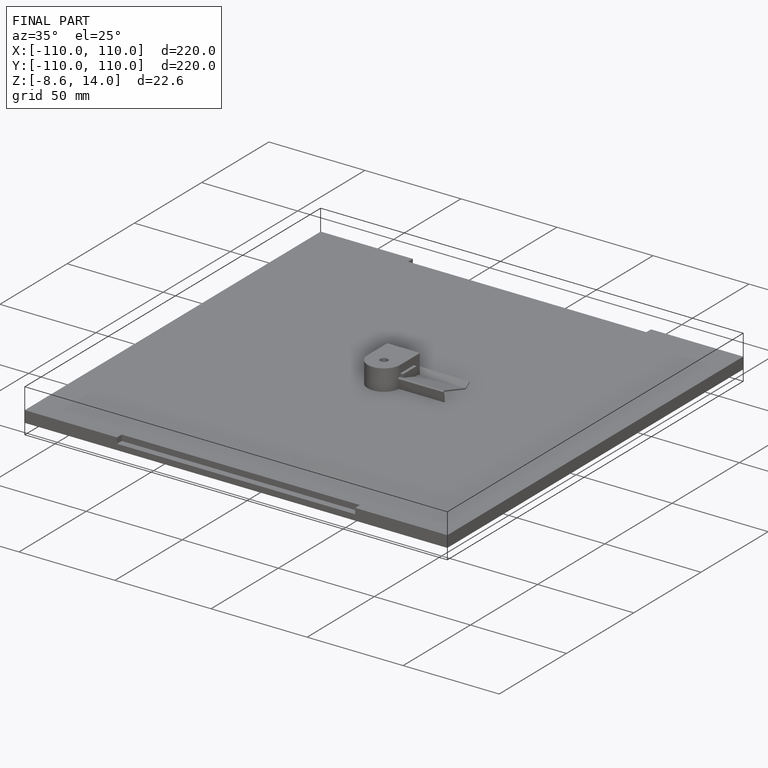
[diagram: finished part — iso view with bounding-box wireframe]
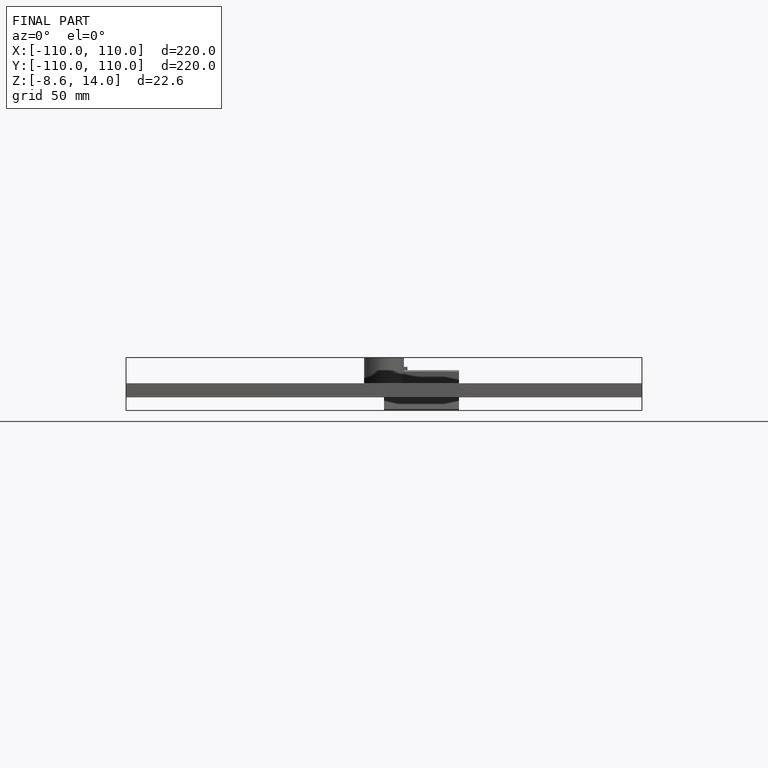
[diagram: finished part — front view with bounding-box wireframe]
